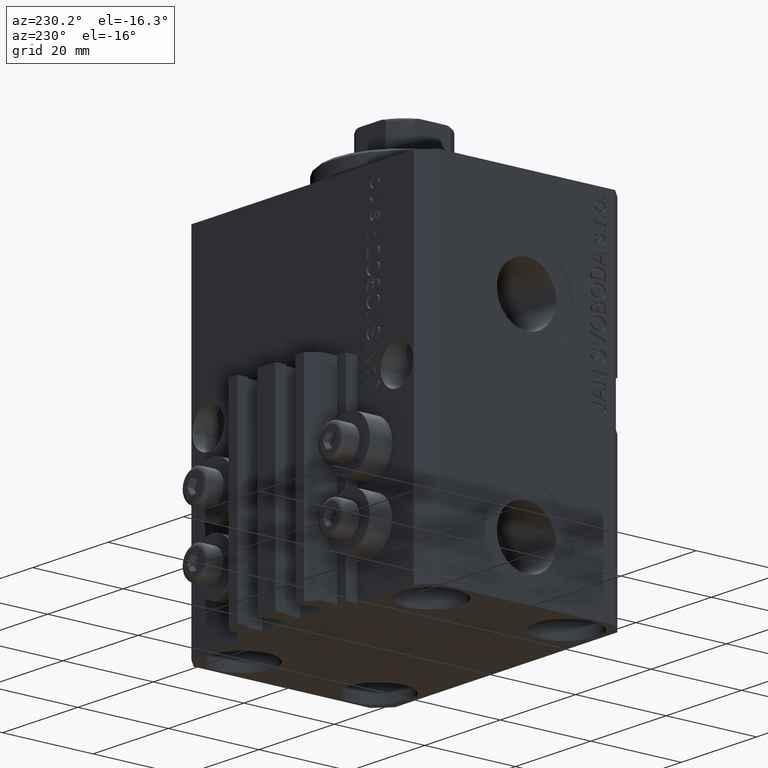
[diagram: clean part render]
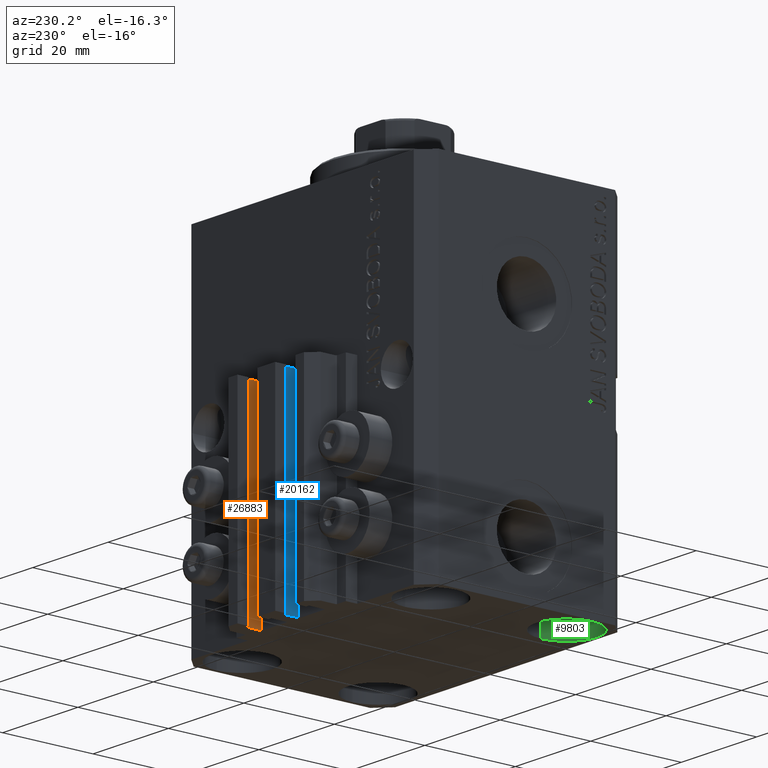
[diagram: same view with three faces highlighted in distinct colors, each labeled with its STEP entity id]
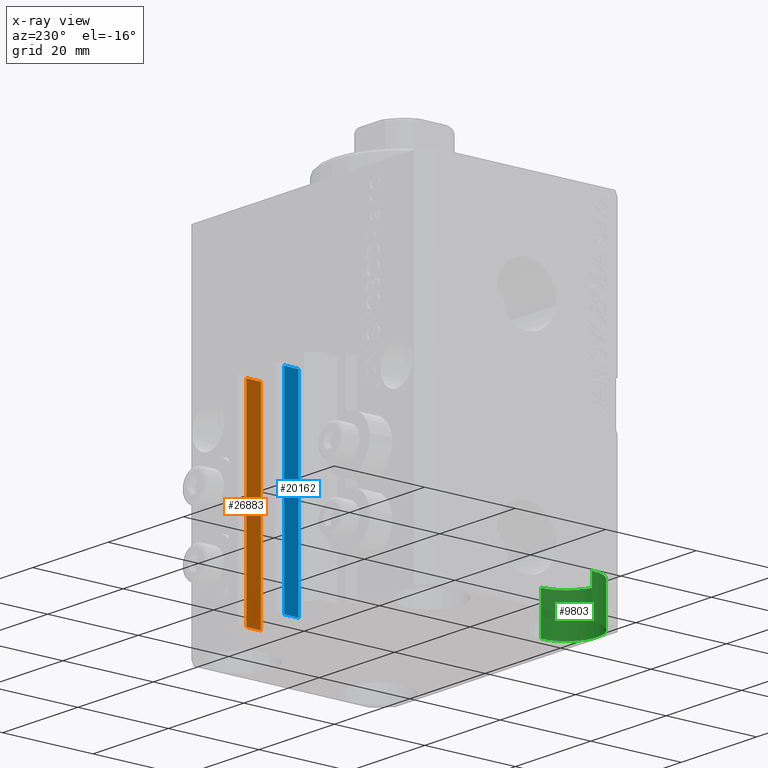
[diagram: x-ray of the same camera — body ghosted, the three highlighted faces saturated]
A machine part, auxiliary view with three faces highlighted in distinct colors.
The next image is the same camera in x-ray (body ghosted, the three faces saturated) — at least one of them is partly hidden behind the body in this view.
Their STEP definitions:

[orange] entity #26883 — the highlighted planar face has unit normal (-1, 0, 0).
#2351 = DIRECTION ( 'NONE',  ( -1.000000000000000000, 5.421010862427496532E-16, 0.000000000000000000 ) ) ;
#3224 = CARTESIAN_POINT ( 'NONE',  ( 8.400000000000000355, 27.89999999999950475, -77.00000000000000000 ) ) ;
#6862 = FACE_OUTER_BOUND ( 'NONE', #17699, .T. ) ;
#11502 = VECTOR ( 'NONE', #45197, 1000.000000000000000 ) ;
#13514 = ORIENTED_EDGE ( 'NONE', *, *, #21957, .T. ) ;
#13562 = PLANE ( 'NONE',  #35465 ) ;
#14923 = CARTESIAN_POINT ( 'NONE',  ( 8.400000000000000355, 24.69999999999949125, -77.00000000000000000 ) ) ;
#16807 = CARTESIAN_POINT ( 'NONE',  ( 8.400000000000000355, 27.89999999999950475, -77.00000000000000000 ) ) ;
#17073 = ORIENTED_EDGE ( 'NONE', *, *, #35121, .F. ) ;
#17423 = LINE ( 'NONE', #34660, #20366 ) ;
#17699 = EDGE_LOOP ( 'NONE', ( #17073, #32603, #27919, #13514 ) ) ;
#18351 = EDGE_CURVE ( 'NONE', #19621, #44759, #21369, .T. ) ;
#18523 = VECTOR ( 'NONE', #21384, 1000.000000000000000 ) ;
#19621 = VERTEX_POINT ( 'NONE', #3224 ) ;
#20366 = VECTOR ( 'NONE', #25275, 1000.000000000000000 ) ;
#21369 = LINE ( 'NONE', #35896, #44436 ) ;
#21384 = DIRECTION ( 'NONE',  ( 0.000000000000000000, 0.000000000000000000, 1.000000000000000000 ) ) ;
#21957 = EDGE_CURVE ( 'NONE', #44759, #28049, #39503, .T. ) ;
#24296 = CARTESIAN_POINT ( 'NONE',  ( 8.400000000000000355, 27.89999999999950475, -77.00000000000000000 ) ) ;
#25275 = DIRECTION ( 'NONE',  ( -5.421010862427496532E-16, -1.000000000000000000, 0.000000000000000000 ) ) ;
#26883 = ADVANCED_FACE ( 'NONE', ( #6862 ), #13562, .T. ) ;
#27647 = DIRECTION ( 'NONE',  ( -5.421010862427496532E-16, -1.000000000000000000, 0.000000000000000000 ) ) ;
#27919 = ORIENTED_EDGE ( 'NONE', *, *, #18351, .T. ) ;
#28049 = VERTEX_POINT ( 'NONE', #46761 ) ;
#32603 = ORIENTED_EDGE ( 'NONE', *, *, #38530, .F. ) ;
#32798 = DIRECTION ( 'NONE',  ( -5.421010862427496532E-16, -1.000000000000000000, 0.000000000000000000 ) ) ;
#33229 = CARTESIAN_POINT ( 'NONE',  ( 8.400000000000000355, 24.69999999999949125, -77.00000000000000000 ) ) ;
#34660 = CARTESIAN_POINT ( 'NONE',  ( 8.400000000000000355, 27.89999999999950475, -33.00000000000000000 ) ) ;
#35121 = EDGE_CURVE ( 'NONE', #35831, #28049, #17423, .T. ) ;
#35465 = AXIS2_PLACEMENT_3D ( 'NONE', #24296, #2351, #27647 ) ;
#35831 = VERTEX_POINT ( 'NONE', #45404 ) ;
#35896 = CARTESIAN_POINT ( 'NONE',  ( 8.400000000000000355, 27.89999999999950475, -77.00000000000000000 ) ) ;
#38530 = EDGE_CURVE ( 'NONE', #19621, #35831, #45428, .T. ) ;
#39503 = LINE ( 'NONE', #14923, #18523 ) ;
#44436 = VECTOR ( 'NONE', #32798, 1000.000000000000000 ) ;
#44759 = VERTEX_POINT ( 'NONE', #33229 ) ;
#45197 = DIRECTION ( 'NONE',  ( 0.000000000000000000, 0.000000000000000000, 1.000000000000000000 ) ) ;
#45404 = CARTESIAN_POINT ( 'NONE',  ( 8.400000000000000355, 27.89999999999950475, -33.00000000000000000 ) ) ;
#45428 = LINE ( 'NONE', #16807, #11502 ) ;
#46761 = CARTESIAN_POINT ( 'NONE',  ( 8.400000000000000355, 24.69999999999949125, -33.00000000000000000 ) ) ;

[blue] entity #20162 — the highlighted planar face has unit normal (-1, 0, 0).
#1245 = CARTESIAN_POINT ( 'NONE',  ( -1.600000000000000533, 27.89999999999950120, -77.00000000000000000 ) ) ;
#1709 = DIRECTION ( 'NONE',  ( -1.000000000000000000, 6.776263578034385456E-17, 0.000000000000000000 ) ) ;
#1972 = LINE ( 'NONE', #30595, #29466 ) ;
#2366 = DIRECTION ( 'NONE',  ( -6.776263578034385456E-17, -1.000000000000000000, 0.000000000000000000 ) ) ;
#2386 = VECTOR ( 'NONE', #2366, 1000.000000000000000 ) ;
#2444 = VECTOR ( 'NONE', #3721, 1000.000000000000000 ) ;
#3721 = DIRECTION ( 'NONE',  ( 0.000000000000000000, 0.000000000000000000, 1.000000000000000000 ) ) ;
#4112 = LINE ( 'NONE', #43708, #7826 ) ;
#5509 = AXIS2_PLACEMENT_3D ( 'NONE', #1245, #1709, #16265 ) ;
#6420 = LINE ( 'NONE', #20979, #2386 ) ;
#7767 = CARTESIAN_POINT ( 'NONE',  ( -1.600000000000003197, 27.89999999999950120, -77.00000000000000000 ) ) ;
#7826 = VECTOR ( 'NONE', #19852, 1000.000000000000000 ) ;
#12019 = CARTESIAN_POINT ( 'NONE',  ( -1.600000000000003197, 27.89999999999950120, -33.00000000000000000 ) ) ;
#12637 = CARTESIAN_POINT ( 'NONE',  ( -1.600000000000003197, 27.89999999999950120, -77.00000000000000000 ) ) ;
#13421 = VERTEX_POINT ( 'NONE', #12019 ) ;
#14774 = VERTEX_POINT ( 'NONE', #12637 ) ;
#15317 = EDGE_CURVE ( 'NONE', #14774, #13421, #46664, .T. ) ;
#15327 = FACE_OUTER_BOUND ( 'NONE', #28227, .T. ) ;
#16265 = DIRECTION ( 'NONE',  ( -6.776263578034385456E-17, -1.000000000000000000, 0.000000000000000000 ) ) ;
#16520 = EDGE_CURVE ( 'NONE', #23069, #45268, #4112, .T. ) ;
#19852 = DIRECTION ( 'NONE',  ( 0.000000000000000000, 0.000000000000000000, 1.000000000000000000 ) ) ;
#20162 = ADVANCED_FACE ( 'NONE', ( #15327 ), #33687, .T. ) ;
#20979 = CARTESIAN_POINT ( 'NONE',  ( -1.600000000000000533, 27.89999999999950120, -33.00000000000000000 ) ) ;
#23069 = VERTEX_POINT ( 'NONE', #46809 ) ;
#27496 = DIRECTION ( 'NONE',  ( -6.776263578034385456E-17, -1.000000000000000000, 0.000000000000000000 ) ) ;
#28227 = EDGE_LOOP ( 'NONE', ( #44165, #41528, #43258, #45387 ) ) ;
#29466 = VECTOR ( 'NONE', #27496, 1000.000000000000000 ) ;
#30595 = CARTESIAN_POINT ( 'NONE',  ( -1.600000000000000533, 27.89999999999950120, -77.00000000000000000 ) ) ;
#33687 = PLANE ( 'NONE',  #5509 ) ;
#33772 = EDGE_CURVE ( 'NONE', #14774, #23069, #1972, .T. ) ;
#34453 = CARTESIAN_POINT ( 'NONE',  ( -1.600000000000000755, 24.69999999999949480, -33.00000000000000000 ) ) ;
#37933 = EDGE_CURVE ( 'NONE', #13421, #45268, #6420, .T. ) ;
#41528 = ORIENTED_EDGE ( 'NONE', *, *, #15317, .F. ) ;
#43258 = ORIENTED_EDGE ( 'NONE', *, *, #33772, .T. ) ;
#43708 = CARTESIAN_POINT ( 'NONE',  ( -1.600000000000000755, 24.69999999999949480, -77.00000000000000000 ) ) ;
#44165 = ORIENTED_EDGE ( 'NONE', *, *, #37933, .F. ) ;
#45268 = VERTEX_POINT ( 'NONE', #34453 ) ;
#45387 = ORIENTED_EDGE ( 'NONE', *, *, #16520, .T. ) ;
#46664 = LINE ( 'NONE', #7767, #2444 ) ;
#46809 = CARTESIAN_POINT ( 'NONE',  ( -1.600000000000000755, 24.69999999999949480, -77.00000000000000000 ) ) ;

[green] entity #9803 — the highlighted cylindrical surface (partial cylindrical patch) has radius 6.75 mm, axis along (-0, -0, -1).
#368 = EDGE_LOOP ( 'NONE', ( #16051, #25875, #8744, #43507 ) ) ;
#2027 = CARTESIAN_POINT ( 'NONE',  ( -18.24999999995846167, -15.00000000000000000, -68.00000000000000000 ) ) ;
#2827 = EDGE_CURVE ( 'NONE', #4426, #40571, #20172, .T. ) ;
#3277 = DIRECTION ( 'NONE',  ( -0.000000000000000000, -0.000000000000000000, 1.000000000000000000 ) ) ;
#4426 = VERTEX_POINT ( 'NONE', #28102 ) ;
#6527 = DIRECTION ( 'NONE',  ( 1.000000000000000000, 0.000000000000000000, 0.000000000000000000 ) ) ;
#8744 = ORIENTED_EDGE ( 'NONE', *, *, #33180, .F. ) ;
#9684 = VECTOR ( 'NONE', #15884, 1000.000000000000000 ) ;
#9803 = ADVANCED_FACE ( 'NONE', ( #35256 ), #17373, .F. ) ;
#9820 = EDGE_CURVE ( 'NONE', #42629, #4426, #41875, .T. ) ;
#15884 = DIRECTION ( 'NONE',  ( -0.000000000000000000, -0.000000000000000000, -1.000000000000000000 ) ) ;
#16051 = ORIENTED_EDGE ( 'NONE', *, *, #9820, .T. ) ;
#17145 = CARTESIAN_POINT ( 'NONE',  ( -25.00000000000000355, -15.00000000000000000, -68.00000000000000000 ) ) ;
#17373 = CYLINDRICAL_SURFACE ( 'NONE', #38845, 6.750000000041545434 ) ;
#19552 = CIRCLE ( 'NONE', #25624, 6.750000000041541881 ) ;
#20172 = LINE ( 'NONE', #2027, #30253 ) ;
#24092 = CARTESIAN_POINT ( 'NONE',  ( -31.75000000004154899, -15.00000000000000000, -77.00000000000000000 ) ) ;
#25624 = AXIS2_PLACEMENT_3D ( 'NONE', #32753, #46595, #6527 ) ;
#25875 = ORIENTED_EDGE ( 'NONE', *, *, #2827, .T. ) ;
#28102 = CARTESIAN_POINT ( 'NONE',  ( -18.24999999995845812, -15.00000000000000000, -68.00000000000000000 ) ) ;
#30253 = VECTOR ( 'NONE', #31123, 1000.000000000000000 ) ;
#30428 = LINE ( 'NONE', #33778, #9684 ) ;
#31123 = DIRECTION ( 'NONE',  ( -0.000000000000000000, -0.000000000000000000, -1.000000000000000000 ) ) ;
#31588 = CARTESIAN_POINT ( 'NONE',  ( -18.24999999995845812, -15.00000000000000000, -77.00000000000000000 ) ) ;
#31679 = DIRECTION ( 'NONE',  ( -0.000000000000000000, -0.000000000000000000, -1.000000000000000000 ) ) ;
#31907 = DIRECTION ( 'NONE',  ( -1.000000000000000000, 0.000000000000000000, 0.000000000000000000 ) ) ;
#32753 = CARTESIAN_POINT ( 'NONE',  ( -25.00000000000000355, -15.00000000000000000, -77.00000000000000000 ) ) ;
#33180 = EDGE_CURVE ( 'NONE', #45838, #40571, #19552, .T. ) ;
#33425 = CARTESIAN_POINT ( 'NONE',  ( -31.75000000004154899, -15.00000000000000000, -68.00000000000000000 ) ) ;
#33778 = CARTESIAN_POINT ( 'NONE',  ( -31.75000000004154899, -15.00000000000000000, -68.00000000000000000 ) ) ;
#34852 = EDGE_CURVE ( 'NONE', #42629, #45838, #30428, .T. ) ;
#35029 = AXIS2_PLACEMENT_3D ( 'NONE', #35951, #3277, #44290 ) ;
#35256 = FACE_OUTER_BOUND ( 'NONE', #368, .T. ) ;
#35951 = CARTESIAN_POINT ( 'NONE',  ( -25.00000000000000355, -15.00000000000000000, -68.00000000000000000 ) ) ;
#38845 = AXIS2_PLACEMENT_3D ( 'NONE', #17145, #31679, #31907 ) ;
#40571 = VERTEX_POINT ( 'NONE', #31588 ) ;
#41875 = CIRCLE ( 'NONE', #35029, 6.750000000041541881 ) ;
#42629 = VERTEX_POINT ( 'NONE', #33425 ) ;
#43507 = ORIENTED_EDGE ( 'NONE', *, *, #34852, .F. ) ;
#44290 = DIRECTION ( 'NONE',  ( 1.000000000000000000, 0.000000000000000000, 0.000000000000000000 ) ) ;
#45838 = VERTEX_POINT ( 'NONE', #24092 ) ;
#46595 = DIRECTION ( 'NONE',  ( -0.000000000000000000, -0.000000000000000000, 1.000000000000000000 ) ) ;